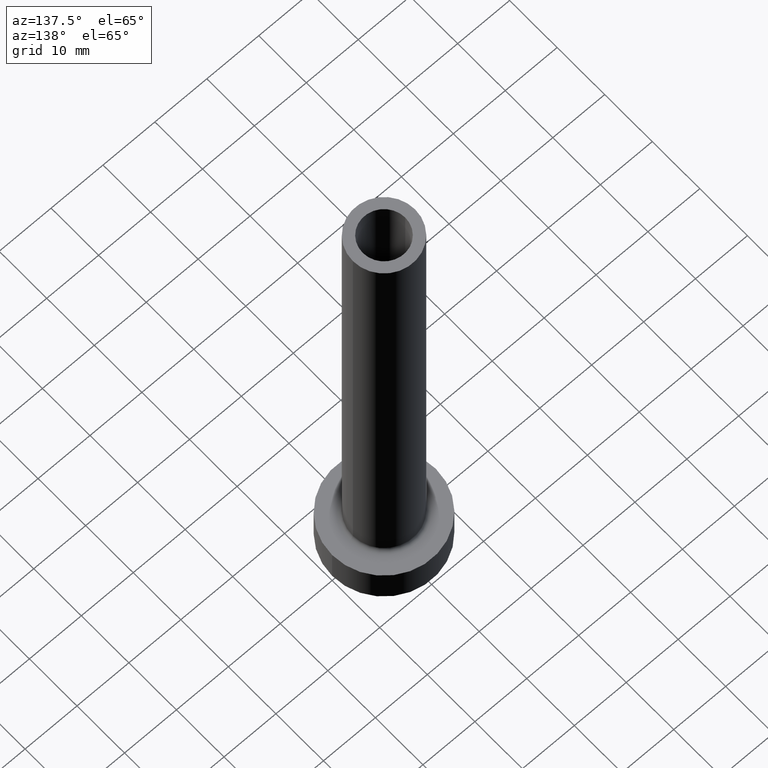
[diagram: clean part render]
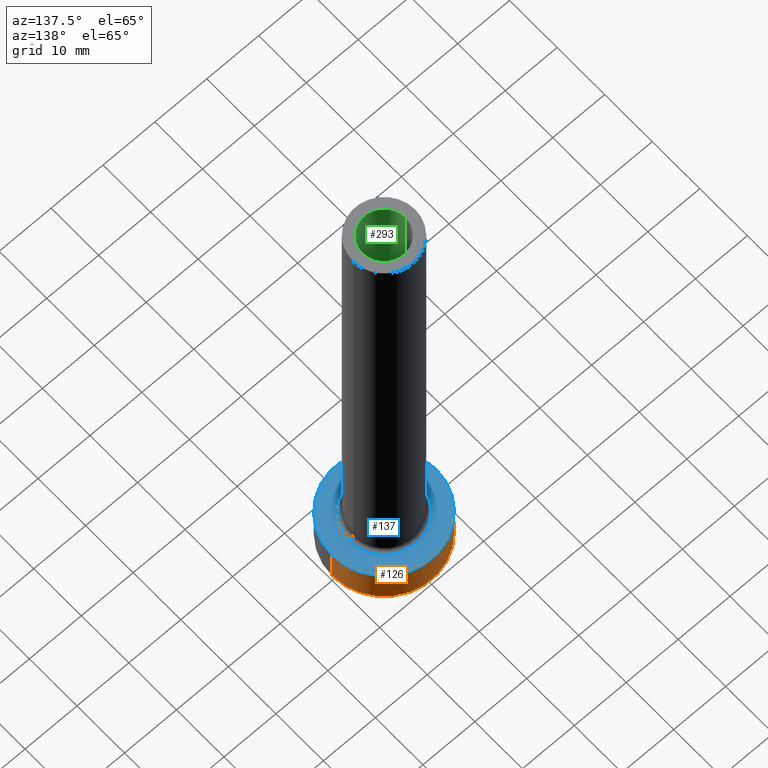
[diagram: same view with three faces highlighted in distinct colors, each labeled with its STEP entity id]
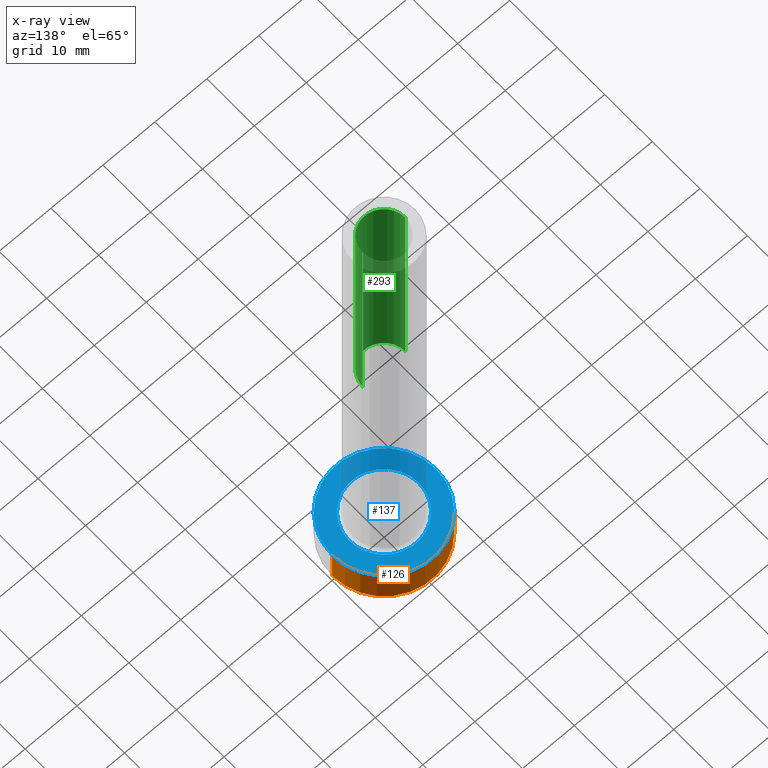
[diagram: x-ray of the same camera — body ghosted, the three highlighted faces saturated]
A machine part, auxiliary view with three faces highlighted in distinct colors.
The next image is the same camera in x-ray (body ghosted, the three faces saturated) — at least one of them is partly hidden behind the body in this view.
Their STEP definitions:

[orange] entity #126 — the highlighted cylindrical surface (partial cylindrical patch) has radius 10 mm, axis along (-0, -0, -1).
#10 = EDGE_CURVE ( 'NONE', #215, #367, #236, .T. ) ;
#39 = ORIENTED_EDGE ( 'NONE', *, *, #10, .F. ) ;
#47 = DIRECTION ( 'NONE',  ( 1.000000000000000000, 0.000000000000000000, 0.000000000000000000 ) ) ;
#48 = DIRECTION ( 'NONE',  ( -0.000000000000000000, -0.000000000000000000, -1.000000000000000000 ) ) ;
#53 = DIRECTION ( 'NONE',  ( -0.000000000000000000, -0.000000000000000000, -1.000000000000000000 ) ) ;
#56 = CYLINDRICAL_SURFACE ( 'NONE', #156, 10.00000000000000000 ) ;
#121 = ORIENTED_EDGE ( 'NONE', *, *, #355, .F. ) ;
#126 = ADVANCED_FACE ( 'NONE', ( #382 ), #56, .T. ) ;
#133 = CARTESIAN_POINT ( 'NONE',  ( -10.00000000000000000, 0.000000000000000000, 7.000000000000000000 ) ) ;
#156 = AXIS2_PLACEMENT_3D ( 'NONE', #337, #48, #192 ) ;
#187 = DIRECTION ( 'NONE',  ( 0.000000000000000000, 0.000000000000000000, 1.000000000000000000 ) ) ;
#192 = DIRECTION ( 'NONE',  ( -1.000000000000000000, 0.000000000000000000, 0.000000000000000000 ) ) ;
#193 = CARTESIAN_POINT ( 'NONE',  ( -10.00000000000000000, 0.000000000000000000, 0.000000000000000000 ) ) ;
#201 = CARTESIAN_POINT ( 'NONE',  ( 10.00000000000000000, 1.224646799147353256E-15, 0.000000000000000000 ) ) ;
#215 = VERTEX_POINT ( 'NONE', #133 ) ;
#216 = EDGE_CURVE ( 'NONE', #448, #367, #456, .T. ) ;
#217 = ORIENTED_EDGE ( 'NONE', *, *, #216, .T. ) ;
#228 = CARTESIAN_POINT ( 'NONE',  ( 0.000000000000000000, 0.000000000000000000, 7.000000000000000000 ) ) ;
#230 = LINE ( 'NONE', #403, #457 ) ;
#232 = DIRECTION ( 'NONE',  ( -0.000000000000000000, -0.000000000000000000, -1.000000000000000000 ) ) ;
#236 = LINE ( 'NONE', #435, #453 ) ;
#240 = DIRECTION ( 'NONE',  ( 1.000000000000000000, 0.000000000000000000, 0.000000000000000000 ) ) ;
#276 = EDGE_LOOP ( 'NONE', ( #121, #340, #217, #39 ) ) ;
#281 = DIRECTION ( 'NONE',  ( 0.000000000000000000, 0.000000000000000000, 1.000000000000000000 ) ) ;
#295 = VERTEX_POINT ( 'NONE', #431 ) ;
#337 = CARTESIAN_POINT ( 'NONE',  ( 0.000000000000000000, 0.000000000000000000, 7.000000000000000000 ) ) ;
#340 = ORIENTED_EDGE ( 'NONE', *, *, #378, .T. ) ;
#349 = CARTESIAN_POINT ( 'NONE',  ( 0.000000000000000000, 0.000000000000000000, 0.000000000000000000 ) ) ;
#355 = EDGE_CURVE ( 'NONE', #295, #215, #406, .T. ) ;
#367 = VERTEX_POINT ( 'NONE', #193 ) ;
#375 = AXIS2_PLACEMENT_3D ( 'NONE', #228, #187, #47 ) ;
#378 = EDGE_CURVE ( 'NONE', #295, #448, #230, .T. ) ;
#382 = FACE_OUTER_BOUND ( 'NONE', #276, .T. ) ;
#403 = CARTESIAN_POINT ( 'NONE',  ( 10.00000000000000000, 1.224646799147353256E-15, 7.000000000000000000 ) ) ;
#406 = CIRCLE ( 'NONE', #375, 10.00000000000000000 ) ;
#408 = AXIS2_PLACEMENT_3D ( 'NONE', #349, #281, #240 ) ;
#431 = CARTESIAN_POINT ( 'NONE',  ( 10.00000000000000000, 1.224646799147353256E-15, 7.000000000000000000 ) ) ;
#435 = CARTESIAN_POINT ( 'NONE',  ( -10.00000000000000000, 0.000000000000000000, 7.000000000000000000 ) ) ;
#448 = VERTEX_POINT ( 'NONE', #201 ) ;
#453 = VECTOR ( 'NONE', #53, 1000.000000000000000 ) ;
#456 = CIRCLE ( 'NONE', #408, 10.00000000000000000 ) ;
#457 = VECTOR ( 'NONE', #232, 1000.000000000000000 ) ;

[blue] entity #137 — the highlighted planar face has unit normal (0, 0, 1).
#13 = CARTESIAN_POINT ( 'NONE',  ( 6.700000000000001066, 0.000000000000000000, 6.999999999999999112 ) ) ;
#23 = CARTESIAN_POINT ( 'NONE',  ( 0.000000000000000000, 0.000000000000000000, 7.000000000000000000 ) ) ;
#32 = AXIS2_PLACEMENT_3D ( 'NONE', #414, #64, #211 ) ;
#47 = DIRECTION ( 'NONE',  ( 1.000000000000000000, 0.000000000000000000, 0.000000000000000000 ) ) ;
#50 = AXIS2_PLACEMENT_3D ( 'NONE', #294, #268, #185 ) ;
#59 = DIRECTION ( 'NONE',  ( 0.000000000000000000, 0.000000000000000000, 1.000000000000000000 ) ) ;
#64 = DIRECTION ( 'NONE',  ( 0.000000000000000000, 0.000000000000000000, 1.000000000000000000 ) ) ;
#65 = CIRCLE ( 'NONE', #50, 6.700000000000001066 ) ;
#72 = ORIENTED_EDGE ( 'NONE', *, *, #355, .T. ) ;
#75 = VERTEX_POINT ( 'NONE', #13 ) ;
#97 = DIRECTION ( 'NONE',  ( 1.000000000000000000, 0.000000000000000000, 0.000000000000000000 ) ) ;
#105 = CIRCLE ( 'NONE', #168, 6.700000000000001066 ) ;
#133 = CARTESIAN_POINT ( 'NONE',  ( -10.00000000000000000, 0.000000000000000000, 7.000000000000000000 ) ) ;
#137 = ADVANCED_FACE ( 'NONE', ( #271, #405 ), #452, .T. ) ;
#164 = CARTESIAN_POINT ( 'NONE',  ( 0.000000000000000000, 0.000000000000000000, 7.000000000000000000 ) ) ;
#168 = AXIS2_PLACEMENT_3D ( 'NONE', #164, #416, #97 ) ;
#185 = DIRECTION ( 'NONE',  ( 1.000000000000000000, 0.000000000000000000, 0.000000000000000000 ) ) ;
#187 = DIRECTION ( 'NONE',  ( 0.000000000000000000, 0.000000000000000000, 1.000000000000000000 ) ) ;
#203 = DIRECTION ( 'NONE',  ( 1.000000000000000000, 0.000000000000000000, 0.000000000000000000 ) ) ;
#209 = CIRCLE ( 'NONE', #262, 10.00000000000000000 ) ;
#211 = DIRECTION ( 'NONE',  ( 1.000000000000000000, 0.000000000000000000, -0.000000000000000000 ) ) ;
#215 = VERTEX_POINT ( 'NONE', #133 ) ;
#222 = EDGE_CURVE ( 'NONE', #215, #295, #209, .T. ) ;
#227 = EDGE_CURVE ( 'NONE', #75, #327, #105, .T. ) ;
#228 = CARTESIAN_POINT ( 'NONE',  ( 0.000000000000000000, 0.000000000000000000, 7.000000000000000000 ) ) ;
#235 = CARTESIAN_POINT ( 'NONE',  ( -6.700000000000001066, 8.205133554287267548E-16, 6.999999999999999112 ) ) ;
#262 = AXIS2_PLACEMENT_3D ( 'NONE', #23, #59, #203 ) ;
#265 = EDGE_CURVE ( 'NONE', #327, #75, #65, .T. ) ;
#268 = DIRECTION ( 'NONE',  ( -0.000000000000000000, -0.000000000000000000, -1.000000000000000000 ) ) ;
#271 = FACE_BOUND ( 'NONE', #428, .T. ) ;
#274 = ORIENTED_EDGE ( 'NONE', *, *, #265, .T. ) ;
#287 = ORIENTED_EDGE ( 'NONE', *, *, #222, .T. ) ;
#294 = CARTESIAN_POINT ( 'NONE',  ( 0.000000000000000000, 0.000000000000000000, 7.000000000000000000 ) ) ;
#295 = VERTEX_POINT ( 'NONE', #431 ) ;
#327 = VERTEX_POINT ( 'NONE', #235 ) ;
#344 = EDGE_LOOP ( 'NONE', ( #287, #72 ) ) ;
#355 = EDGE_CURVE ( 'NONE', #295, #215, #406, .T. ) ;
#375 = AXIS2_PLACEMENT_3D ( 'NONE', #228, #187, #47 ) ;
#405 = FACE_OUTER_BOUND ( 'NONE', #344, .T. ) ;
#406 = CIRCLE ( 'NONE', #375, 10.00000000000000000 ) ;
#414 = CARTESIAN_POINT ( 'NONE',  ( 0.000000000000000000, 0.000000000000000000, 7.000000000000000000 ) ) ;
#416 = DIRECTION ( 'NONE',  ( -0.000000000000000000, -0.000000000000000000, -1.000000000000000000 ) ) ;
#423 = ORIENTED_EDGE ( 'NONE', *, *, #227, .T. ) ;
#428 = EDGE_LOOP ( 'NONE', ( #423, #274 ) ) ;
#431 = CARTESIAN_POINT ( 'NONE',  ( 10.00000000000000000, 1.224646799147353256E-15, 7.000000000000000000 ) ) ;
#452 = PLANE ( 'NONE',  #32 ) ;

[green] entity #293 — the highlighted cylindrical surface (edge-blend (fillet) strip) has radius 4.1 mm, axis along (0, 0, -1).
#1 = ORIENTED_EDGE ( 'NONE', *, *, #73, .T. ) ;
#9 = CARTESIAN_POINT ( 'NONE',  ( 4.099999999999999645, 5.021051876504146399E-16, 55.00000000000000711 ) ) ;
#19 = DIRECTION ( 'NONE',  ( 0.000000000000000000, 0.000000000000000000, -1.000000000000000000 ) ) ;
#31 = ORIENTED_EDGE ( 'NONE', *, *, #368, .F. ) ;
#42 = AXIS2_PLACEMENT_3D ( 'NONE', #399, #345, #407 ) ;
#49 = AXIS2_PLACEMENT_3D ( 'NONE', #190, #81, #443 ) ;
#62 = VECTOR ( 'NONE', #401, 1000.000000000000000 ) ;
#73 = EDGE_CURVE ( 'NONE', #400, #289, #188, .T. ) ;
#77 = VERTEX_POINT ( 'NONE', #153 ) ;
#79 = LINE ( 'NONE', #159, #62 ) ;
#81 = DIRECTION ( 'NONE',  ( 0.000000000000000000, 0.000000000000000000, 1.000000000000000000 ) ) ;
#103 = CIRCLE ( 'NONE', #49, 4.099999999999999645 ) ;
#115 = VECTOR ( 'NONE', #19, 1000.000000000000000 ) ;
#123 = CARTESIAN_POINT ( 'NONE',  ( -4.099999999999999645, 0.000000000000000000, 100.0000000000000000 ) ) ;
#134 = DIRECTION ( 'NONE',  ( 0.000000000000000000, 0.000000000000000000, 1.000000000000000000 ) ) ;
#153 = CARTESIAN_POINT ( 'NONE',  ( -4.099999999999999645, 0.000000000000000000, 55.00000000000000711 ) ) ;
#154 = CYLINDRICAL_SURFACE ( 'NONE', #42, 4.099999999999999645 ) ;
#159 = CARTESIAN_POINT ( 'NONE',  ( -4.099999999999999645, 0.000000000000000000, 100.0000000000000000 ) ) ;
#174 = AXIS2_PLACEMENT_3D ( 'NONE', #381, #134, #352 ) ;
#183 = ORIENTED_EDGE ( 'NONE', *, *, #315, .F. ) ;
#188 = LINE ( 'NONE', #311, #115 ) ;
#190 = CARTESIAN_POINT ( 'NONE',  ( 0.000000000000000000, 0.000000000000000000, 55.00000000000000711 ) ) ;
#219 = EDGE_LOOP ( 'NONE', ( #396, #1, #31, #183 ) ) ;
#233 = CIRCLE ( 'NONE', #174, 4.099999999999999645 ) ;
#272 = FACE_OUTER_BOUND ( 'NONE', #219, .T. ) ;
#289 = VERTEX_POINT ( 'NONE', #9 ) ;
#293 = ADVANCED_FACE ( 'NONE', ( #272 ), #154, .F. ) ;
#303 = VERTEX_POINT ( 'NONE', #123 ) ;
#311 = CARTESIAN_POINT ( 'NONE',  ( 4.099999999999999645, 5.021051876504146399E-16, 100.0000000000000000 ) ) ;
#315 = EDGE_CURVE ( 'NONE', #303, #77, #79, .T. ) ;
#320 = CARTESIAN_POINT ( 'NONE',  ( 4.099999999999999645, 5.021051876504146399E-16, 100.0000000000000000 ) ) ;
#345 = DIRECTION ( 'NONE',  ( 0.000000000000000000, 0.000000000000000000, -1.000000000000000000 ) ) ;
#352 = DIRECTION ( 'NONE',  ( 1.000000000000000000, 0.000000000000000000, 0.000000000000000000 ) ) ;
#368 = EDGE_CURVE ( 'NONE', #77, #289, #103, .T. ) ;
#381 = CARTESIAN_POINT ( 'NONE',  ( 0.000000000000000000, 0.000000000000000000, 100.0000000000000000 ) ) ;
#396 = ORIENTED_EDGE ( 'NONE', *, *, #420, .T. ) ;
#399 = CARTESIAN_POINT ( 'NONE',  ( 0.000000000000000000, 0.000000000000000000, 100.0000000000000000 ) ) ;
#400 = VERTEX_POINT ( 'NONE', #320 ) ;
#401 = DIRECTION ( 'NONE',  ( 0.000000000000000000, 0.000000000000000000, -1.000000000000000000 ) ) ;
#407 = DIRECTION ( 'NONE',  ( -1.000000000000000000, 0.000000000000000000, 0.000000000000000000 ) ) ;
#420 = EDGE_CURVE ( 'NONE', #303, #400, #233, .T. ) ;
#443 = DIRECTION ( 'NONE',  ( 1.000000000000000000, 0.000000000000000000, 0.000000000000000000 ) ) ;